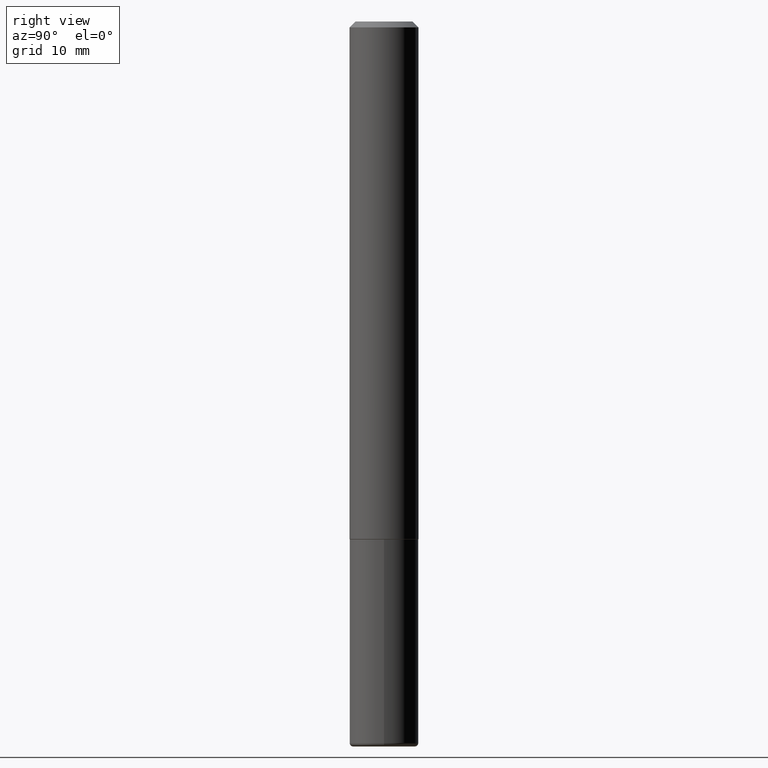
[diagram: clean part render]
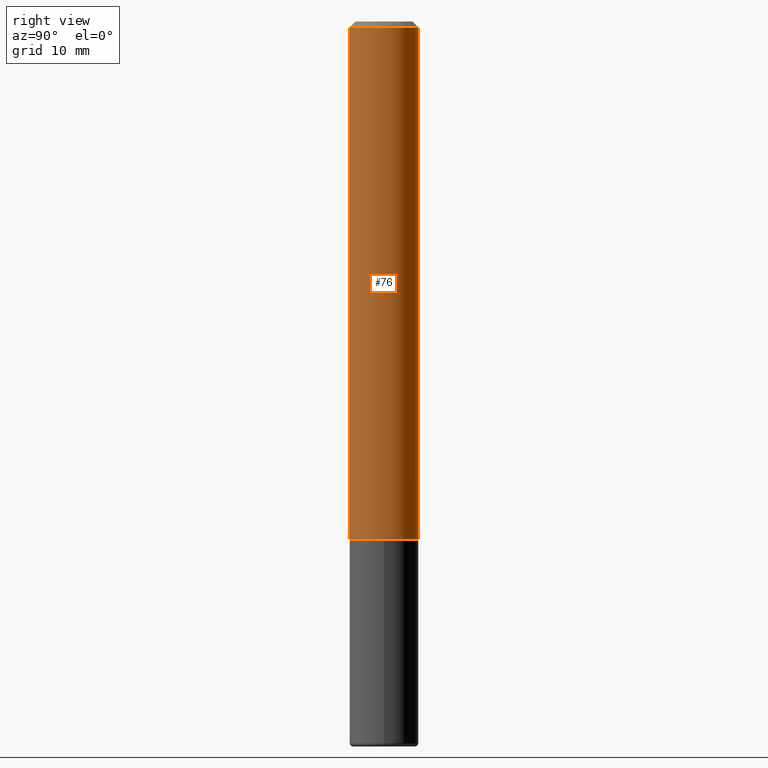
[diagram: same view with one face highlighted and labeled with its STEP entity id]
A machine part, right view. The second image highlights one B-rep face of the part: STEP entity #76.
In plain terms, the highlighted cylindrical surface (edge-blend (fillet) strip) has radius 2.9997 mm, axis along (-0, 0, 1).
Its self-contained STEP definition (entity closure, byte-faithful):
#9 = VERTEX_POINT ( 'NONE', #176 ) ;
#12 = DIRECTION ( 'NONE',  ( -2.443238767566187138E-29, 3.494674881071396916E-15, 1.000000000000000000 ) ) ;
#16 = CARTESIAN_POINT ( 'NONE',  ( 4.325998561852691348E-29, -6.187671344425017014E-15, -1.770600000000000174 ) ) ;
#22 = DIRECTION ( 'NONE',  ( -2.443238767566187138E-29, 3.494674881071396916E-15, 1.000000000000000000 ) ) ;
#26 = AXIS2_PLACEMENT_3D ( 'NONE', #351, #380, #215 ) ;
#53 = CARTESIAN_POINT ( 'NONE',  ( 8.391509709327014685E-16, 0.1180999999999940708, -1.770600000000000840 ) ) ;
#55 = DIRECTION ( 'NONE',  ( -2.443238767566187138E-29, 3.494674881071397310E-15, 1.000000000000000000 ) ) ;
#64 = VECTOR ( 'NONE', #408, 39.37007874015748143 ) ;
#76 = ADVANCED_FACE ( 'NONE', ( #148 ), #179, .T. ) ;
#77 = VERTEX_POINT ( 'NONE', #406 ) ;
#92 = CARTESIAN_POINT ( 'NONE',  ( 0.000000000000000000, 0.000000000000000000, 0.000000000000000000 ) ) ;
#104 = ORIENTED_EDGE ( 'NONE', *, *, #311, .T. ) ;
#113 = LINE ( 'NONE', #217, #127 ) ;
#127 = VECTOR ( 'NONE', #55, 39.37007874015748143 ) ;
#138 = ORIENTED_EDGE ( 'NONE', *, *, #204, .F. ) ;
#148 = FACE_OUTER_BOUND ( 'NONE', #260, .T. ) ;
#176 = CARTESIAN_POINT ( 'NONE',  ( 8.246878922347484598E-16, 0.1180999999999999273, -0.02000000000000045838 ) ) ;
#179 = CYLINDRICAL_SURFACE ( 'NONE', #389, 0.1181000000000001215 ) ;
#183 = EDGE_CURVE ( 'NONE', #77, #9, #196, .T. ) ;
#196 = CIRCLE ( 'NONE', #26, 0.1180999999999999966 ) ;
#202 = ORIENTED_EDGE ( 'NONE', *, *, #324, .T. ) ;
#204 = EDGE_CURVE ( 'NONE', #271, #77, #113, .T. ) ;
#215 = DIRECTION ( 'NONE',  ( -6.982962677686265922E-15, -1.000000000000000000, 3.505890868245046092E-15 ) ) ;
#217 = CARTESIAN_POINT ( 'NONE',  ( -8.246878922347488542E-16, -0.1181000000000001215, 4.127211034545323724E-16 ) ) ;
#229 = DIRECTION ( 'NONE',  ( -6.982962677686265922E-15, -1.000000000000000000, 4.626330217890360659E-15 ) ) ;
#252 = CIRCLE ( 'NONE', #404, 0.1181000000000002326 ) ;
#253 = LINE ( 'NONE', #284, #64 ) ;
#260 = EDGE_LOOP ( 'NONE', ( #104, #202, #310, #138 ) ) ;
#271 = VERTEX_POINT ( 'NONE', #360 ) ;
#280 = DIRECTION ( 'NONE',  ( -6.982962677686265922E-15, -1.000000000000000000, 3.494674881071396522E-15 ) ) ;
#284 = CARTESIAN_POINT ( 'NONE',  ( 8.391509709326790846E-16, 0.1181000000000001215, -4.127211034545323724E-16 ) ) ;
#310 = ORIENTED_EDGE ( 'NONE', *, *, #183, .F. ) ;
#311 = EDGE_CURVE ( 'NONE', #271, #330, #252, .T. ) ;
#324 = EDGE_CURVE ( 'NONE', #330, #9, #253, .T. ) ;
#330 = VERTEX_POINT ( 'NONE', #53 ) ;
#351 = CARTESIAN_POINT ( 'NONE',  ( 4.886477535132384121E-31, -6.989349762142808870E-17, -0.02000000000000004205 ) ) ;
#360 = CARTESIAN_POINT ( 'NONE',  ( -8.246878922347063544E-16, -0.1181000000000064221, -1.770599999999999730 ) ) ;
#380 = DIRECTION ( 'NONE',  ( -2.443238767566187138E-29, 3.494674881071396916E-15, 1.000000000000000000 ) ) ;
#389 = AXIS2_PLACEMENT_3D ( 'NONE', #92, #12, #280 ) ;
#404 = AXIS2_PLACEMENT_3D ( 'NONE', #16, #22, #229 ) ;
#406 = CARTESIAN_POINT ( 'NONE',  ( -8.102248135368172434E-16, -0.1181000000000000660, -0.01999999999999962919 ) ) ;
#408 = DIRECTION ( 'NONE',  ( -2.443238767566187138E-29, 3.494674881071397310E-15, 1.000000000000000000 ) ) ;